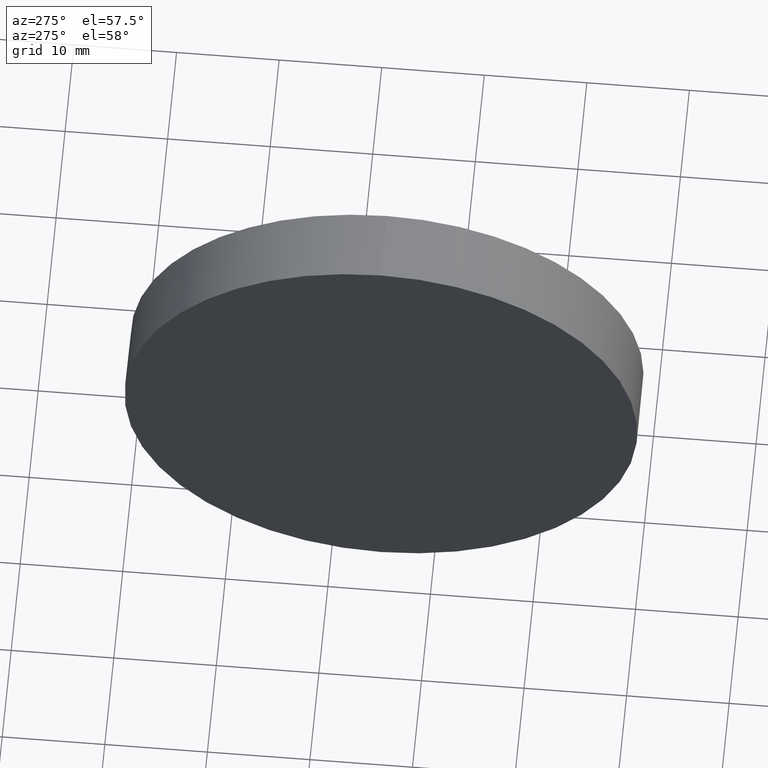
[diagram: clean part render]
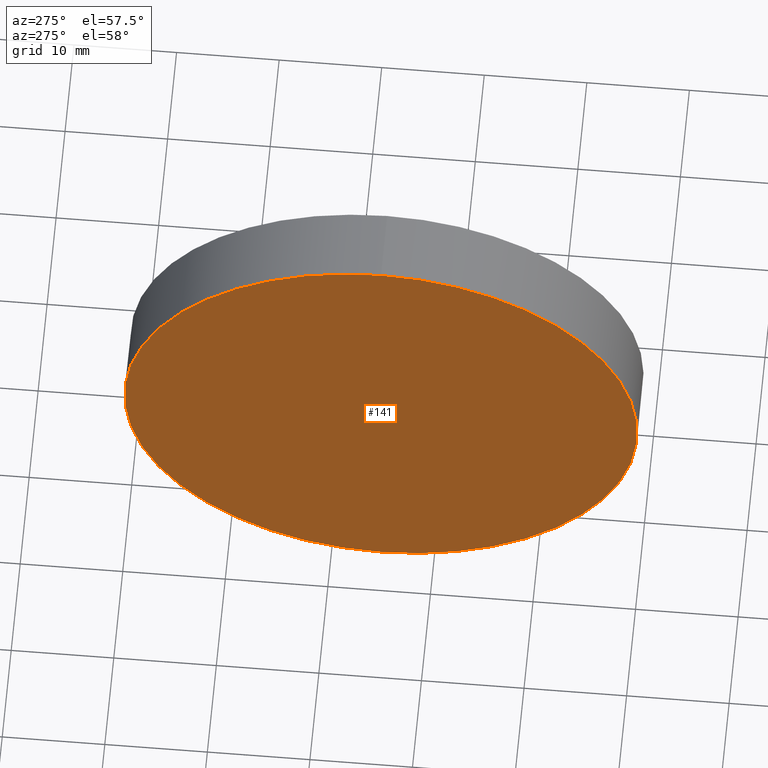
[diagram: same view with one face highlighted and labeled with its STEP entity id]
A machine part, auxiliary view. The second image highlights one B-rep face of the part: STEP entity #141.
In plain terms, the highlighted planar face has unit normal (1, 0, 0).
Its self-contained STEP definition (entity closure, byte-faithful):
#9 = DIRECTION ( 'NONE',  ( 0.0000000000000000000, 0.0000000000000000000, 1.000000000000000000 ) ) ;
#16 = CARTESIAN_POINT ( 'NONE',  ( 113.7394371346435000, 65.15563045701519200, -24.99999999999999300 ) ) ;
#30 = AXIS2_PLACEMENT_3D ( 'NONE', #144, #126, #165 ) ;
#31 = ORIENTED_EDGE ( 'NONE', *, *, #178, .T. ) ;
#34 = CIRCLE ( 'NONE', #138, 24.99999999999999300 ) ;
#37 = DIRECTION ( 'NONE',  ( -1.000000000000000000, -0.0000000000000000000, -0.0000000000000000000 ) ) ;
#45 = EDGE_CURVE ( 'NONE', #55, #160, #121, .T. ) ;
#50 = CARTESIAN_POINT ( 'NONE',  ( 113.7394371346435000, 65.15563045701519200, 24.99999999999999300 ) ) ;
#51 = ORIENTED_EDGE ( 'NONE', *, *, #45, .T. ) ;
#55 = VERTEX_POINT ( 'NONE', #16 ) ;
#69 = CARTESIAN_POINT ( 'NONE',  ( 113.7394371346435000, 65.15563045701519200, 0.0000000000000000000 ) ) ;
#77 = FACE_OUTER_BOUND ( 'NONE', #140, .T. ) ;
#103 = AXIS2_PLACEMENT_3D ( 'NONE', #69, #37, #112 ) ;
#112 = DIRECTION ( 'NONE',  ( 0.0000000000000000000, 0.0000000000000000000, 1.000000000000000000 ) ) ;
#121 = CIRCLE ( 'NONE', #103, 24.99999999999999300 ) ;
#126 = DIRECTION ( 'NONE',  ( 1.000000000000000000, 0.0000000000000000000, 0.0000000000000000000 ) ) ;
#128 = CARTESIAN_POINT ( 'NONE',  ( 113.7394371346435000, 65.15563045701519200, 0.0000000000000000000 ) ) ;
#138 = AXIS2_PLACEMENT_3D ( 'NONE', #128, #155, #9 ) ;
#140 = EDGE_LOOP ( 'NONE', ( #31, #51 ) ) ;
#141 = ADVANCED_FACE ( 'NONE', ( #77 ), #168, .F. ) ;
#144 = CARTESIAN_POINT ( 'NONE',  ( 113.7394371346435000, 65.15563045701519200, 0.0000000000000000000 ) ) ;
#155 = DIRECTION ( 'NONE',  ( -1.000000000000000000, -0.0000000000000000000, -0.0000000000000000000 ) ) ;
#160 = VERTEX_POINT ( 'NONE', #50 ) ;
#165 = DIRECTION ( 'NONE',  ( 0.0000000000000000000, 0.0000000000000000000, -1.000000000000000000 ) ) ;
#168 = PLANE ( 'NONE',  #30 ) ;
#178 = EDGE_CURVE ( 'NONE', #160, #55, #34, .T. ) ;